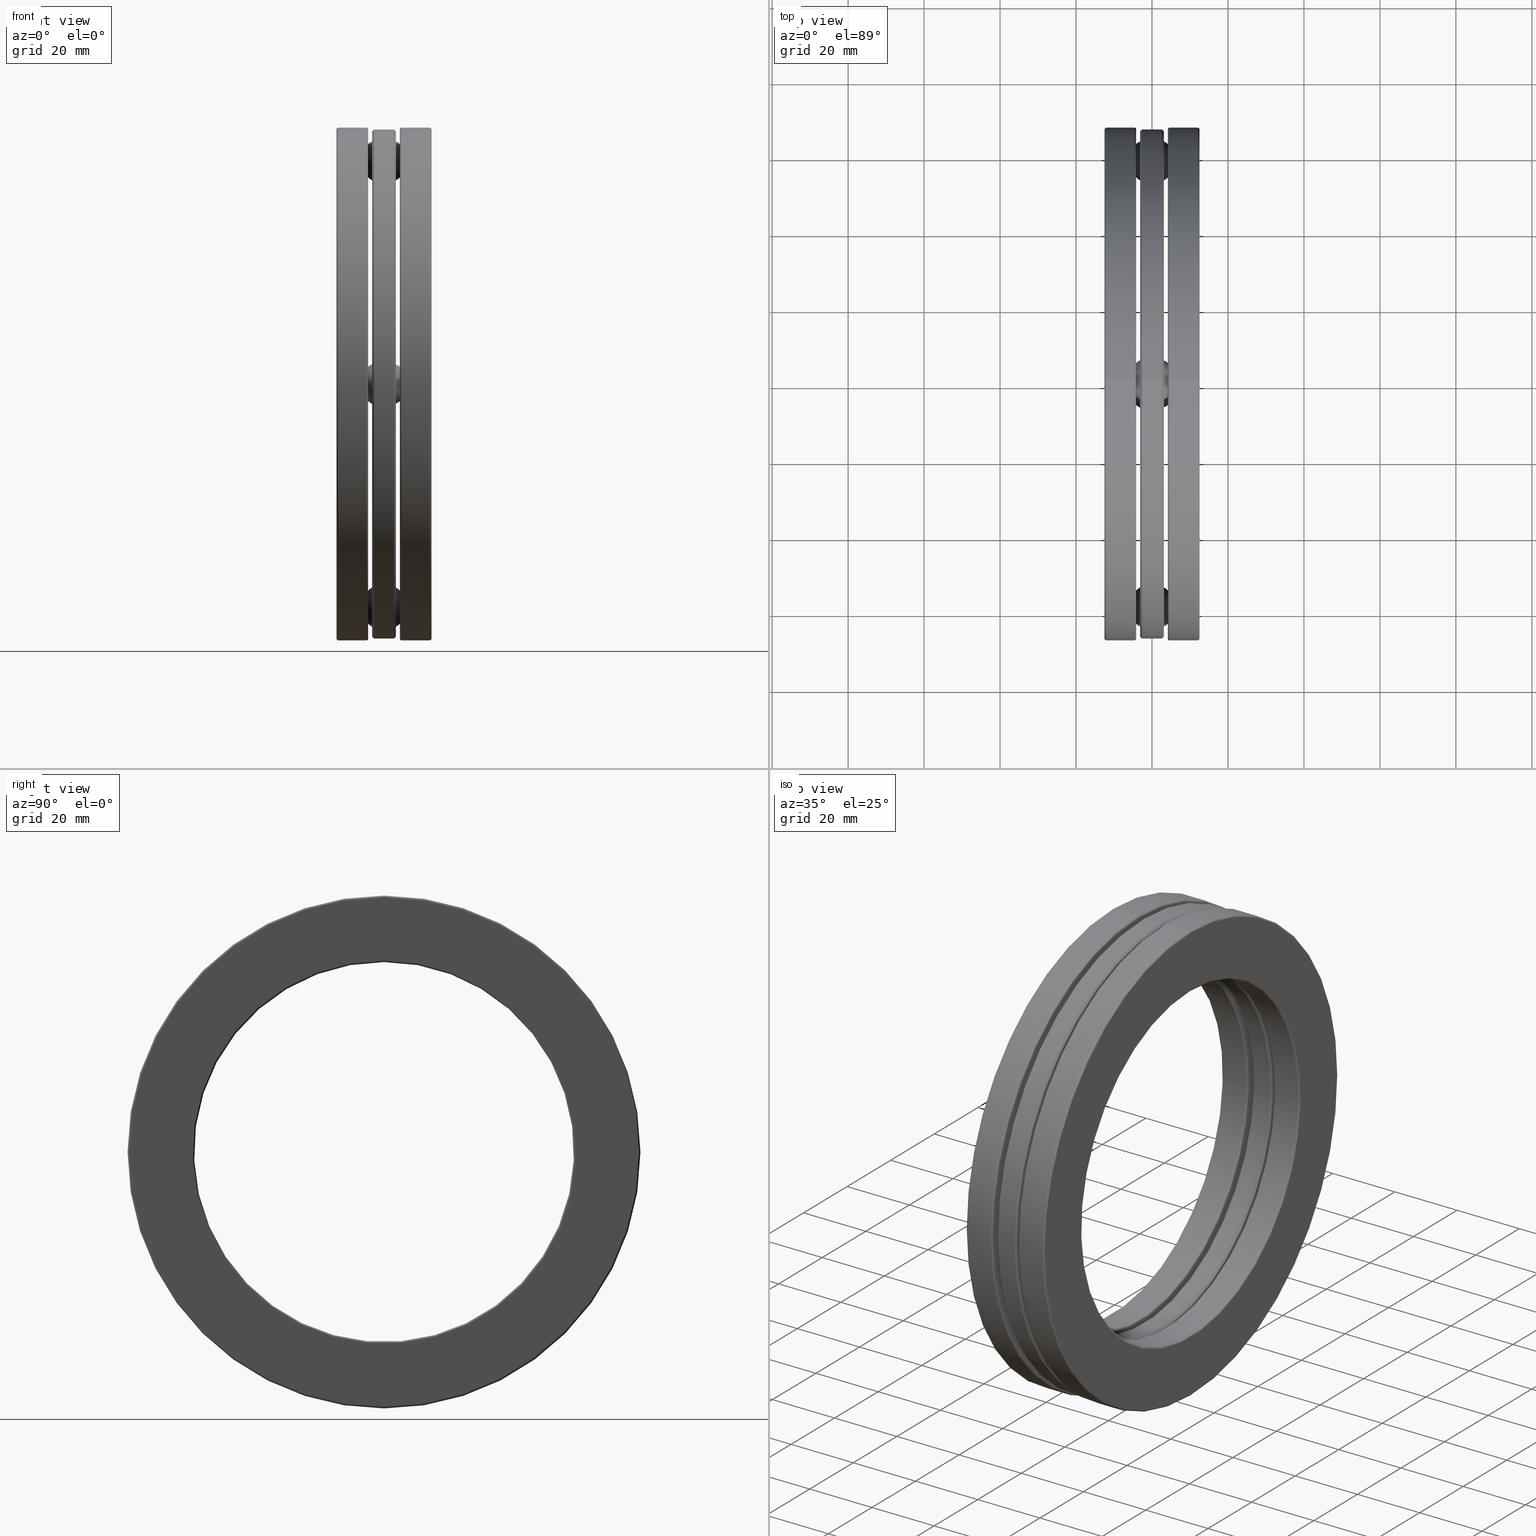
[diagram: canonical four-view strip — front | top / right | iso, engineering-drawing reading convention]
A machine part, canonical four-view strip (front | top / right | iso — engineering-drawing reading convention). The complete STEP part file that produces these views, byte-faithful:
ISO-10303-21;
HEADER;
FILE_DESCRIPTION (( 'STEP AP203' ),
    '1' );
FILE_NAME ('2920-ABB.step',
    '2017-03-07T16:43:13',
    ( '' ),
    ( '' ),
    'SwSTEP 2.0',
    'SolidWorks 2017',
    '' );
FILE_SCHEMA (( 'CONFIG_CONTROL_DESIGN' ));
ENDSEC;

DATA;
#1 = VERTEX_POINT ( 'NONE', #473 ) ;
#2 = ORIENTED_EDGE ( 'NONE', *, *, #636, .T. ) ;
#3 = APPROVAL ( #43, 'UNSPECIFIED' ) ;
#4 = CIRCLE ( 'NONE', #454, 2.637500000000000600 ) ;
#5 = CARTESIAN_POINT ( 'NONE',  ( 0.1640032800000006700, 2.588782924243225700E-017, 0.0000000000000000000 ) ) ;
#6 = CARTESIAN_POINT ( 'NONE',  ( 0.0000000000000000000, 2.422738901023250200E-014, 2.313000000000000200 ) ) ;
#7 = EDGE_CURVE ( 'NONE', #583, #583, #131, .T. ) ;
#8 = CALENDAR_DATE ( 2017, 7, 3 ) ;
#9 = VERTEX_POINT ( 'NONE', #427 ) ;
#10 = EDGE_LOOP ( 'NONE', ( #319 ) ) ;
#11 = TOROIDAL_SURFACE ( 'NONE', #192, 2.637500000000000600, 0.02000000000000016300 ) ;
#12 = EDGE_CURVE ( 'NONE', #457, #457, #61, .T. ) ;
#13 = DIRECTION ( 'NONE',  ( -1.000000000000000000, -0.0000000000000000000, -0.0000000000000000000 ) ) ;
#14 = AXIS2_PLACEMENT_3D ( 'NONE', #605, #402, #336 ) ;
#15 = CARTESIAN_POINT ( 'NONE',  ( 0.0000000000000000000, -8.075796336744167400E-015, -2.313000000000000200 ) ) ;
#16 = DIRECTION ( 'NONE',  ( -1.000000000000000000, 0.0000000000000000000, 0.0000000000000000000 ) ) ;
#17 = DIRECTION ( 'NONE',  ( 1.000000000000000000, 0.0000000000000000000, 0.0000000000000000000 ) ) ;
#18 = PERSON_AND_ORGANIZATION ( #133, #581 ) ;
#19 = ORIENTED_EDGE ( 'NONE', *, *, #709, .T. ) ;
#20 = AXIS2_PLACEMENT_3D ( 'NONE', #752, #444, #769 ) ;
#21 = FACE_OUTER_BOUND ( 'NONE', #704, .T. ) ;
#22 = DIRECTION ( 'NONE',  ( 1.000000000000000000, 0.0000000000000000000, 0.0000000000000000000 ) ) ;
#23 = FACE_OUTER_BOUND ( 'NONE', #10, .T. ) ;
#24 = EDGE_CURVE ( 'NONE', #703, #703, #811, .T. ) ;
#25 = DIRECTION ( 'NONE',  ( 0.0000000000000000000, 0.0000000000000000000, 1.000000000000000000 ) ) ;
#26 = APPROVAL_PERSON_ORGANIZATION ( #195, #3, #624 ) ;
#27 = EDGE_LOOP ( 'NONE', ( #115 ) ) ;
#28 = DIRECTION ( 'NONE',  ( 1.000000000000000000, 0.0000000000000000000, 0.0000000000000000000 ) ) ;
#29 = EDGE_LOOP ( 'NONE', ( #103 ) ) ;
#30 = CYLINDRICAL_SURFACE ( 'NONE', #50, 0.2470000000000005000 ) ;
#31 = EDGE_CURVE ( 'NONE', #58, #58, #394, .T. ) ;
#32 = EDGE_CURVE ( 'NONE', #455, #455, #544, .T. ) ;
#33 = DATE_TIME_ROLE ( 'creation_date' ) ;
#34 = AXIS2_PLACEMENT_3D ( 'NONE', #764, #56, #315 ) ;
#35 = ADVANCED_FACE ( 'NONE', ( #374, #790 ), #534, .T. ) ;
#36 = DIRECTION ( 'NONE',  ( -1.000000000000000000, -0.0000000000000000000, -0.0000000000000000000 ) ) ;
#37 = CARTESIAN_POINT ( 'NONE',  ( 0.1640032800000007200, 0.0000000000000000000, 2.135047972337369900 ) ) ;
#38 = VERTEX_POINT ( 'NONE', #232 ) ;
#39 = CARTESIAN_POINT ( 'NONE',  ( 0.1229999999999999700, 0.0000000000000000000, 0.0000000000000000000 ) ) ;
#40 = EDGE_LOOP ( 'NONE', ( #797 ) ) ;
#41 = FACE_BOUND ( 'NONE', #432, .T. ) ;
#42 = FACE_OUTER_BOUND ( 'NONE', #226, .T. ) ;
#43 = APPROVAL_STATUS ( 'not_yet_approved' ) ;
#44 = CARTESIAN_POINT ( 'NONE',  ( 0.0000000000000000000, 0.0000000000000000000, 0.0000000000000000000 ) ) ;
#45 = DIRECTION ( 'NONE',  ( -1.000000000000000000, -0.0000000000000000000, -0.0000000000000000000 ) ) ;
#46 = DIRECTION ( 'NONE',  ( 1.000000000000000000, 0.0000000000000000000, 0.0000000000000000000 ) ) ;
#47 = AXIS2_PLACEMENT_3D ( 'NONE', #268, #142, #655 ) ;
#48 = CLOSED_SHELL ( 'NONE', ( #62 ) ) ;
#49 = ORIENTED_EDGE ( 'NONE', *, *, #436, .F. ) ;
#50 = AXIS2_PLACEMENT_3D ( 'NONE', #369, #180, #642 ) ;
#51 = DIRECTION ( 'NONE',  ( -1.000000000000000000, -0.0000000000000000000, -0.0000000000000000000 ) ) ;
#52 = CARTESIAN_POINT ( 'NONE',  ( -0.1230000000000000000, 0.0000000000000000000, 2.617500000000000600 ) ) ;
#53 = ADVANCED_FACE ( 'NONE', ( #174, #386 ), #785, .F. ) ;
#54 = EDGE_CURVE ( 'NONE', #539, #539, #114, .T. ) ;
#55 = CARTESIAN_POINT ( 'NONE',  ( -0.1029999999999999900, 0.0000000000000000000, 0.0000000000000000000 ) ) ;
#56 = DIRECTION ( 'NONE',  ( -1.000000000000000000, -0.0000000000000000000, -0.0000000000000000000 ) ) ;
#57 = PERSON_AND_ORGANIZATION ( #133, #581 ) ;
#58 = VERTEX_POINT ( 'NONE', #135 ) ;
#59 = ORIENTED_EDGE ( 'NONE', *, *, #468, .F. ) ;
#60 = CIRCLE ( 'NONE', #72, 0.2470000000000005000 ) ;
#61 = CIRCLE ( 'NONE', #14, 0.2470000000000005000 ) ;
#62 = ADVANCED_FACE ( 'NONE', ( ), #714, .T. ) ;
#63 = AXIS2_PLACEMENT_3D ( 'NONE', #812, #498, #176 ) ;
#64 = DIRECTION ( 'NONE',  ( -1.000000000000000000, -0.0000000000000000000, -0.0000000000000000000 ) ) ;
#65 = ORIENTED_EDGE ( 'NONE', *, *, #149, .F. ) ;
#66 = ORIENTED_EDGE ( 'NONE', *, *, #69, .F. ) ;
#67 = EDGE_LOOP ( 'NONE', ( #68 ) ) ;
#68 = ORIENTED_EDGE ( 'NONE', *, *, #140, .F. ) ;
#69 = EDGE_CURVE ( 'NONE', #597, #597, #259, .T. ) ;
#70 = CC_DESIGN_APPROVAL ( #3, ( #716 ) ) ;
#71 = LOCAL_TIME ( 11, 43, 13.00000000000000000, #450 ) ;
#72 = AXIS2_PLACEMENT_3D ( 'NONE', #295, #173, #550 ) ;
#73 = VERTEX_POINT ( 'NONE', #673 ) ;
#74 = EDGE_LOOP ( 'NONE', ( #543 ) ) ;
#75 = FACE_OUTER_BOUND ( 'NONE', #712, .T. ) ;
#76 = EDGE_LOOP ( 'NONE', ( #392 ) ) ;
#77 = CIRCLE ( 'NONE', #34, 1.968500000000000100 ) ;
#78 = FACE_OUTER_BOUND ( 'NONE', #179, .T. ) ;
#79 = FACE_BOUND ( 'NONE', #74, .T. ) ;
#80 = DIRECTION ( 'NONE',  ( -1.000000000000000000, -0.0000000000000000000, -0.0000000000000000000 ) ) ;
#81 = DIRECTION ( 'NONE',  ( 0.0000000000000000000, 0.0000000000000000000, -1.000000000000000000 ) ) ;
#82 = DIRECTION ( 'NONE',  ( 0.0000000000000000000, 0.0000000000000000000, -1.000000000000000000 ) ) ;
#83 = SECURITY_CLASSIFICATION ( '', '', #291 ) ;
#84 = ADVANCED_FACE ( 'NONE', ( #193, #287, #126, #660, #782, #253 ), #602, .F. ) ;
#85 = ORIENTED_EDGE ( 'NONE', *, *, #7, .F. ) ;
#86 = CYLINDRICAL_SURFACE ( 'NONE', #352, 1.988500000000000400 ) ;
#87 = ORIENTED_EDGE ( 'NONE', *, *, #391, .T. ) ;
#88 = FACE_OUTER_BOUND ( 'NONE', #40, .T. ) ;
#89 = CARTESIAN_POINT ( 'NONE',  ( -0.1229999999999999600, 0.2470000000000247000, 2.312999999999997500 ) ) ;
#90 = EDGE_LOOP ( 'NONE', ( #635 ) ) ;
#91 = DIRECTION ( 'NONE',  ( 0.0000000000000000000, 0.0000000000000000000, 1.000000000000000000 ) ) ;
#92 = PERSON_AND_ORGANIZATION_ROLE ( 'design_owner' ) ;
#93 = AXIS2_PLACEMENT_3D ( 'NONE', #729, #409, #476 ) ;
#94 = ADVANCED_FACE ( 'NONE', ( #79, #434 ), #463, .T. ) ;
#95 = CARTESIAN_POINT ( 'NONE',  ( -0.1229999999999999600, -0.2470000000000085500, -2.312999999999999300 ) ) ;
#96 = CARTESIAN_POINT ( 'NONE',  ( 0.1840032800000007700, 0.0000000000000000000, 0.0000000000000000000 ) ) ;
#97 = COORDINATED_UNIVERSAL_TIME_OFFSET ( 5, 0, .BEHIND. ) ;
#98 = EDGE_CURVE ( 'NONE', #224, #224, #323, .T. ) ;
#99 = ADVANCED_FACE ( 'NONE', ( #745, #88 ), #565, .T. ) ;
#100 = CARTESIAN_POINT ( 'NONE',  ( 0.0000000000000000000, 0.0000000000000000000, 0.0000000000000000000 ) ) ;
#101 = EDGE_LOOP ( 'NONE', ( #400 ) ) ;
#102 = CONICAL_SURFACE ( 'NONE', #278, 2.637500000000000600, 0.7853981633974437300 ) ;
#103 = ORIENTED_EDGE ( 'NONE', *, *, #69, .T. ) ;
#104 = CARTESIAN_POINT ( 'NONE',  ( 0.1840032800000006300, 0.0000000000000000000, 0.0000000000000000000 ) ) ;
#105 = PERSON_AND_ORGANIZATION_ROLE ( 'design_supplier' ) ;
#106 = CARTESIAN_POINT ( 'NONE',  ( -0.1640032799999999200, 0.0000000000000000000, 2.637500000000000600 ) ) ;
#107 = AXIS2_PLACEMENT_3D ( 'NONE', #55, #187, #694 ) ;
#108 = TOROIDAL_SURFACE ( 'NONE', #438, 2.637500000000000600, 0.01999999999999975400 ) ;
#109 = EDGE_LOOP ( 'NONE', ( #307 ) ) ;
#110 = CARTESIAN_POINT ( 'NONE',  ( -0.1640032799999997800, -4.314638207071997200E-017, 0.0000000000000000000 ) ) ;
#111 = FACE_OUTER_BOUND ( 'NONE', #753, .T. ) ;
#112 = EDGE_LOOP ( 'NONE', ( #461 ) ) ;
#113 = DIRECTION ( 'NONE',  ( -1.000000000000000000, -0.0000000000000000000, -0.0000000000000000000 ) ) ;
#114 = CIRCLE ( 'NONE', #398, 2.657500000000000600 ) ;
#115 = ORIENTED_EDGE ( 'NONE', *, *, #186, .F. ) ;
#116 = DIRECTION ( 'NONE',  ( 0.0000000000000000000, 0.0000000000000000000, 1.000000000000000000 ) ) ;
#117 = EDGE_CURVE ( 'NONE', #687, #687, #367, .T. ) ;
#118 = DIRECTION ( 'NONE',  ( 0.0000000000000000000, 0.0000000000000000000, -1.000000000000000000 ) ) ;
#119 = COORDINATED_UNIVERSAL_TIME_OFFSET ( 5, 0, .BEHIND. ) ;
#120 = VERTEX_POINT ( 'NONE', #478 ) ;
#121 = ORIENTED_EDGE ( 'NONE', *, *, #805, .T. ) ;
#122 = CLOSED_SHELL ( 'NONE', ( #447, #94, #589, #773, #220, #614, #820, #185, #548, #99 ) ) ;
#123 = CARTESIAN_POINT ( 'NONE',  ( -0.1230000000000000000, 0.0000000000000000000, 0.0000000000000000000 ) ) ;
#124 = FACE_OUTER_BOUND ( 'NONE', #347, .T. ) ;
#125 = AXIS2_PLACEMENT_3D ( 'NONE', #822, #516, #252 ) ;
#126 = FACE_BOUND ( 'NONE', #283, .T. ) ;
#127 = CARTESIAN_POINT ( 'NONE',  ( -0.1029999999999999700, 0.0000000000000000000, 1.988500000000000400 ) ) ;
#128 = CC_DESIGN_PERSON_AND_ORGANIZATION_ASSIGNMENT ( #276, #681, ( #716 ) ) ;
#129 = FACE_OUTER_BOUND ( 'NONE', #152, .T. ) ;
#130 = EDGE_LOOP ( 'NONE', ( #421 ) ) ;
#131 = CIRCLE ( 'NONE', #47, 1.968500000000000100 ) ;
#132 = CARTESIAN_POINT ( 'NONE',  ( -0.4720000000000001400, 0.0000000000000000000, 0.0000000000000000000 ) ) ;
#133 = PERSON ( 'UNSPECIFIED', 'UNSPECIFIED', 'UNSPECIFIED', ('UNSPECIFIED'), ('UNSPECIFIED'), ('UNSPECIFIED') ) ;
#134 = AXIS2_PLACEMENT_3D ( 'NONE', #490, #292, #366 ) ;
#135 = CARTESIAN_POINT ( 'NONE',  ( -0.1229999999999999600, 0.0000000000000000000, 2.008500000000000600 ) ) ;
#136 = ORIENTED_EDGE ( 'NONE', *, *, #547, .F. ) ;
#137 = FACE_OUTER_BOUND ( 'NONE', #109, .T. ) ;
#138 = ORIENTED_EDGE ( 'NONE', *, *, #672, .T. ) ;
#139 = FACE_OUTER_BOUND ( 'NONE', #431, .T. ) ;
#140 = EDGE_CURVE ( 'NONE', #726, #726, #403, .T. ) ;
#141 = CARTESIAN_POINT ( 'NONE',  ( -0.1640032799999997800, -4.314638207071997200E-017, 0.0000000000000000000 ) ) ;
#142 = DIRECTION ( 'NONE',  ( -1.000000000000000000, -0.0000000000000000000, -0.0000000000000000000 ) ) ;
#143 = EDGE_LOOP ( 'NONE', ( #136 ) ) ;
#144 = ADVANCED_FACE ( 'NONE', ( #588, #286 ), #102, .T. ) ;
#145 = CIRCLE ( 'NONE', #654, 2.490952027662630900 ) ;
#146 = CARTESIAN_POINT ( 'NONE',  ( -0.1229999999999999600, -6.896906880556317300E-018, 0.0000000000000000000 ) ) ;
#147 = DIRECTION ( 'NONE',  ( 0.0000000000000000000, 1.000000000000000000, -1.106011333467310900E-014 ) ) ;
#148 = DIRECTION ( 'NONE',  ( 0.0000000000000000000, 1.000000000000000000, -3.491481338843133400E-015 ) ) ;
#149 = EDGE_CURVE ( 'NONE', #1, #1, #145, .T. ) ;
#150 = PERSON_AND_ORGANIZATION_ROLE ( 'creator' ) ;
#151 = LOCAL_TIME ( 11, 43, 13.00000000000000000, #203 ) ;
#152 = EDGE_LOOP ( 'NONE', ( #339 ) ) ;
#153 = CARTESIAN_POINT ( 'NONE',  ( 0.1840032800000006600, 0.0000000000000000000, 0.0000000000000000000 ) ) ;
#154 = EDGE_CURVE ( 'NONE', #329, #329, #471, .T. ) ;
#155 = CYLINDRICAL_SURFACE ( 'NONE', #320, 2.657500000000000200 ) ;
#156 = ORIENTED_EDGE ( 'NONE', *, *, #12, .T. ) ;
#157 =( CONVERSION_BASED_UNIT ( 'INCH', #380 ) LENGTH_UNIT ( ) NAMED_UNIT ( #251 ) );
#158 = EDGE_LOOP ( 'NONE', ( #330 ) ) ;
#159 = DIRECTION ( 'NONE',  ( -1.000000000000000000, -0.0000000000000000000, -0.0000000000000000000 ) ) ;
#160 = ADVANCED_FACE ( 'NONE', ( #23, #529 ), #30, .F. ) ;
#161 = CARTESIAN_POINT ( 'NONE',  ( 0.1230000000000000300, 0.0000000000000000000, 2.008500000000000600 ) ) ;
#162 = AXIS2_PLACEMENT_3D ( 'NONE', #5, #313, #118 ) ;
#163 = CARTESIAN_POINT ( 'NONE',  ( 0.0000000000000000000, 0.0000000000000000000, 0.0000000000000000000 ) ) ;
#164 = ADVANCED_FACE ( 'NONE', ( #766, #250 ), #517, .F. ) ;
#165 = DATE_TIME_ROLE ( 'classification_date' ) ;
#166 = DIRECTION ( 'NONE',  ( 0.0000000000000000000, 0.0000000000000000000, 1.000000000000000000 ) ) ;
#167 = VERTEX_POINT ( 'NONE', #732 ) ;
#168 = CONICAL_SURFACE ( 'NONE', #397, 2.008500000000000600, 0.7853981633974500600 ) ;
#169 = ORIENTED_EDGE ( 'NONE', *, *, #685, .F. ) ;
#170 = AXIS2_PLACEMENT_3D ( 'NONE', #626, #756, #680 ) ;
#171 = FACE_OUTER_BOUND ( 'NONE', #256, .T. ) ;
#172 = FACE_OUTER_BOUND ( 'NONE', #767, .T. ) ;
#173 = DIRECTION ( 'NONE',  ( 1.000000000000000000, 0.0000000000000000000, 0.0000000000000000000 ) ) ;
#174 = FACE_BOUND ( 'NONE', #488, .T. ) ;
#175 = DIRECTION ( 'NONE',  ( 0.0000000000000000000, 0.0000000000000000000, -1.000000000000000000 ) ) ;
#176 = DIRECTION ( 'NONE',  ( 0.0000000000000000000, 0.0000000000000000000, -1.000000000000000000 ) ) ;
#177 = DIRECTION ( 'NONE',  ( 1.000000000000000000, 0.0000000000000000000, 0.0000000000000000000 ) ) ;
#178 = PERSON_AND_ORGANIZATION ( #133, #581 ) ;
#179 = EDGE_LOOP ( 'NONE', ( #65 ) ) ;
#180 = DIRECTION ( 'NONE',  ( 1.000000000000000000, 0.0000000000000000000, 0.0000000000000000000 ) ) ;
#181 = FACE_BOUND ( 'NONE', #205, .T. ) ;
#182 = ORIENTED_EDGE ( 'NONE', *, *, #343, .T. ) ;
#183 = AXIS2_PLACEMENT_3D ( 'NONE', #441, #701, #247 ) ;
#184 = CONICAL_SURFACE ( 'NONE', #379, 2.008500000000000600, 0.7853981633974500600 ) ;
#185 = ADVANCED_FACE ( 'NONE', ( #350, #42 ), #228, .F. ) ;
#186 = EDGE_CURVE ( 'NONE', #265, #265, #561, .T. ) ;
#187 = DIRECTION ( 'NONE',  ( -1.000000000000000000, -0.0000000000000000000, -0.0000000000000000000 ) ) ;
#188 = VERTEX_POINT ( 'NONE', #549 ) ;
#189 = ORIENTED_EDGE ( 'NONE', *, *, #468, .T. ) ;
#190 = CIRCLE ( 'NONE', #792, 0.2470000000000005000 ) ;
#191 = CIRCLE ( 'NONE', #821, 1.988500000000000400 ) ;
#192 = AXIS2_PLACEMENT_3D ( 'NONE', #153, #625, #801 ) ;
#193 = FACE_BOUND ( 'NONE', #570, .T. ) ;
#194 = DIRECTION ( 'NONE',  ( -1.000000000000000000, -0.0000000000000000000, -0.0000000000000000000 ) ) ;
#195 = PERSON_AND_ORGANIZATION ( #133, #581 ) ;
#196 = ORIENTED_EDGE ( 'NONE', *, *, #636, .F. ) ;
#197 = ORIENTED_EDGE ( 'NONE', *, *, #154, .F. ) ;
#198 = FACE_OUTER_BOUND ( 'NONE', #628, .T. ) ;
#199 = ORIENTED_EDGE ( 'NONE', *, *, #566, .F. ) ;
#200 = DIRECTION ( 'NONE',  ( -1.000000000000000000, 0.0000000000000000000, 0.0000000000000000000 ) ) ;
#201 = AXIS2_PLACEMENT_3D ( 'NONE', #806, #45, #567 ) ;
#202 = DIRECTION ( 'NONE',  ( 0.0000000000000000000, 0.0000000000000000000, 1.000000000000000000 ) ) ;
#203 = COORDINATED_UNIVERSAL_TIME_OFFSET ( 5, 0, .BEHIND. ) ;
#204 = FACE_BOUND ( 'NONE', #67, .T. ) ;
#205 = EDGE_LOOP ( 'NONE', ( #197 ) ) ;
#206 = EDGE_LOOP ( 'NONE', ( #189 ) ) ;
#207 = ADVANCED_FACE ( 'NONE', ( #809, #124 ), #789, .F. ) ;
#208 = CARTESIAN_POINT ( 'NONE',  ( 0.0000000000000000000, 0.0000000000000000000, 0.0000000000000000000 ) ) ;
#209 = CARTESIAN_POINT ( 'NONE',  ( -0.1229999999999999600, 2.422738901023250200E-014, 2.313000000000000200 ) ) ;
#210 = DIRECTION ( 'NONE',  ( 1.000000000000000000, 0.0000000000000000000, 0.0000000000000000000 ) ) ;
#211 = EDGE_CURVE ( 'NONE', #493, #493, #191, .T. ) ;
#212 = VERTEX_POINT ( 'NONE', #413 ) ;
#213 = ORIENTED_EDGE ( 'NONE', *, *, #117, .T. ) ;
#214 = CC_DESIGN_SECURITY_CLASSIFICATION ( #83, ( #716 ) ) ;
#215 = ORIENTED_EDGE ( 'NONE', *, *, #7, .T. ) ;
#216 = DIRECTION ( 'NONE',  ( -1.000000000000000000, -0.0000000000000000000, -0.0000000000000000000 ) ) ;
#217 = EDGE_LOOP ( 'NONE', ( #59 ) ) ;
#218 = APPROVAL_ROLE ( '' ) ;
#219 = AXIS2_PLACEMENT_3D ( 'NONE', #15, #148, #272 ) ;
#220 = ADVANCED_FACE ( 'NONE', ( #172, #460 ), #298, .T. ) ;
#221 = CARTESIAN_POINT ( 'NONE',  ( -0.4920000000000001000, 0.0000000000000000000, 2.637500000000000600 ) ) ;
#222 = DIRECTION ( 'NONE',  ( 0.0000000000000000000, 0.0000000000000000000, -1.000000000000000000 ) ) ;
#223 = EDGE_CURVE ( 'NONE', #212, #212, #819, .T. ) ;
#224 = VERTEX_POINT ( 'NONE', #536 ) ;
#225 = DIRECTION ( 'NONE',  ( 0.0000000000000000000, 0.0000000000000000000, 1.000000000000000000 ) ) ;
#226 = EDGE_LOOP ( 'NONE', ( #85 ) ) ;
#227 = CARTESIAN_POINT ( 'NONE',  ( -0.1229999999999999600, 0.0000000000000000000, 0.0000000000000000000 ) ) ;
#228 = CYLINDRICAL_SURFACE ( 'NONE', #408, 1.968500000000000100 ) ;
#229 = DIRECTION ( 'NONE',  ( 0.0000000000000000000, 0.0000000000000000000, -1.000000000000000000 ) ) ;
#230 = DIRECTION ( 'NONE',  ( -1.000000000000000000, -0.0000000000000000000, -0.0000000000000000000 ) ) ;
#231 = DIRECTION ( 'NONE',  ( -1.000000000000000000, -0.0000000000000000000, -0.0000000000000000000 ) ) ;
#232 = CARTESIAN_POINT ( 'NONE',  ( 0.4720000000000009200, 0.0000000000000000000, 1.968500000000000100 ) ) ;
#233 = AXIS2_PLACEMENT_3D ( 'NONE', #428, #231, #676 ) ;
#234 = CARTESIAN_POINT ( 'NONE',  ( -0.1840032799999997100, 0.0000000000000000000, 0.0000000000000000000 ) ) ;
#235 = DATE_AND_TIME ( #467, #71 ) ;
#236 = EDGE_LOOP ( 'NONE', ( #763 ) ) ;
#237 = EDGE_LOOP ( 'NONE', ( #631 ) ) ;
#238 = ADVANCED_FACE ( 'NONE', ( ), #601, .T. ) ;
#239 = UNCERTAINTY_MEASURE_WITH_UNIT (LENGTH_MEASURE( 1.000000000000000100E-005 ), #157, 'distance_accuracy_value', 'NONE');
#240 = EDGE_LOOP ( 'NONE', ( #573 ) ) ;
#241 = CARTESIAN_POINT ( 'NONE',  ( -0.1640032799999998900, 0.0000000000000000000, 0.0000000000000000000 ) ) ;
#242 = DIRECTION ( 'NONE',  ( -1.000000000000000000, -0.0000000000000000000, -0.0000000000000000000 ) ) ;
#243 = ADVANCED_FACE ( 'NONE', ( ), #523, .T. ) ;
#244 = DIRECTION ( 'NONE',  ( 0.0000000000000000000, 0.0000000000000000000, 1.000000000000000000 ) ) ;
#245 = DIRECTION ( 'NONE',  ( -1.000000000000000000, -0.0000000000000000000, -0.0000000000000000000 ) ) ;
#246 = VERTEX_POINT ( 'NONE', #748 ) ;
#247 = DIRECTION ( 'NONE',  ( 0.0000000000000000000, 0.0000000000000000000, 1.000000000000000000 ) ) ;
#248 = EDGE_LOOP ( 'NONE', ( #215 ) ) ;
#249 = DIRECTION ( 'NONE',  ( -1.000000000000000000, -0.0000000000000000000, -0.0000000000000000000 ) ) ;
#250 = FACE_OUTER_BOUND ( 'NONE', #575, .T. ) ;
#251 = DIMENSIONAL_EXPONENTS ( 1.000000000000000000, 0.0000000000000000000, 0.0000000000000000000, 0.0000000000000000000, 0.0000000000000000000, 0.0000000000000000000, 0.0000000000000000000 ) ;
#252 = DIRECTION ( 'NONE',  ( 0.0000000000000000000, 0.0000000000000000000, 1.000000000000000000 ) ) ;
#253 = FACE_OUTER_BOUND ( 'NONE', #420, .T. ) ;
#254 = CARTESIAN_POINT ( 'NONE',  ( 0.0000000000000000000, 0.0000000000000000000, 0.0000000000000000000 ) ) ;
#255 = DIRECTION ( 'NONE',  ( 0.0000000000000000000, -1.000000000000000000, 3.318034000401932600E-015 ) ) ;
#256 = EDGE_LOOP ( 'NONE', ( #558 ) ) ;
#257 = FACE_OUTER_BOUND ( 'NONE', #504, .T. ) ;
#258 = EDGE_LOOP ( 'NONE', ( #679 ) ) ;
#259 = CIRCLE ( 'NONE', #439, 2.637500000000000600 ) ;
#260 = DIRECTION ( 'NONE',  ( 0.0000000000000000000, 0.0000000000000000000, 1.000000000000000000 ) ) ;
#261 = EDGE_CURVE ( 'NONE', #519, #519, #705, .T. ) ;
#262 = CARTESIAN_POINT ( 'NONE',  ( 0.1230000000000000100, 0.2470000000000247000, 2.312999999999997500 ) ) ;
#263 = AXIS2_PLACEMENT_3D ( 'NONE', #209, #658, #147 ) ;
#264 = APPROVAL_DATE_TIME ( #440, #404 ) ;
#265 = VERTEX_POINT ( 'NONE', #52 ) ;
#266 = CLOSED_SHELL ( 'NONE', ( #238 ) ) ;
#267 = FACE_BOUND ( 'NONE', #101, .T. ) ;
#268 = CARTESIAN_POINT ( 'NONE',  ( -0.1840032799999997400, 0.0000000000000000000, 0.0000000000000000000 ) ) ;
#269 = CC_DESIGN_APPROVAL ( #706, ( #376 ) ) ;
#270 = DIRECTION ( 'NONE',  ( -1.000000000000000000, -0.0000000000000000000, -0.0000000000000000000 ) ) ;
#271 = AXIS2_PLACEMENT_3D ( 'NONE', #449, #772, #316 ) ;
#272 = DIRECTION ( 'NONE',  ( -1.000000000000000000, 0.0000000000000000000, 0.0000000000000000000 ) ) ;
#273 = DESIGN_CONTEXT ( 'detailed design', #623, 'design' ) ;
#274 = DIRECTION ( 'NONE',  ( 0.0000000000000000000, 0.0000000000000000000, -1.000000000000000000 ) ) ;
#275 = CARTESIAN_POINT ( 'NONE',  ( 0.1640032800000007200, 0.0000000000000000000, 0.0000000000000000000 ) ) ;
#276 = PERSON_AND_ORGANIZATION ( #133, #581 ) ;
#277 = ORIENTED_EDGE ( 'NONE', *, *, #261, .F. ) ;
#278 = AXIS2_PLACEMENT_3D ( 'NONE', #426, #230, #297 ) ;
#279 = ORIENTED_EDGE ( 'NONE', *, *, #24, .T. ) ;
#280 = DIRECTION ( 'NONE',  ( 1.000000000000000000, 0.0000000000000000000, 0.0000000000000000000 ) ) ;
#281 = CARTESIAN_POINT ( 'NONE',  ( 0.1230000000000000100, -2.313000000000000200, 0.2470000000000005000 ) ) ;
#282 = VERTEX_POINT ( 'NONE', #411 ) ;
#283 = EDGE_LOOP ( 'NONE', ( #277 ) ) ;
#284 = CARTESIAN_POINT ( 'NONE',  ( 0.1840032800000007700, 0.0000000000000000000, 1.968500000000000100 ) ) ;
#285 = EDGE_LOOP ( 'NONE', ( #382 ) ) ;
#286 = FACE_OUTER_BOUND ( 'NONE', #373, .T. ) ;
#287 = FACE_BOUND ( 'NONE', #112, .T. ) ;
#288 = DIRECTION ( 'NONE',  ( -0.0000000000000000000, 0.0000000000000000000, -1.000000000000000000 ) ) ;
#289 = APPLICATION_CONTEXT ( 'configuration controlled 3d designs of mechanical parts and assemblies' ) ;
#290 = AXIS2_PLACEMENT_3D ( 'NONE', #751, #684, #574 ) ;
#291 = SECURITY_CLASSIFICATION_LEVEL ( 'unclassified' ) ;
#292 = DIRECTION ( 'NONE',  ( -1.000000000000000000, -0.0000000000000000000, -0.0000000000000000000 ) ) ;
#293 = DIRECTION ( 'NONE',  ( -1.000000000000000000, -0.0000000000000000000, -0.0000000000000000000 ) ) ;
#294 = AXIS2_PLACEMENT_3D ( 'NONE', #208, #535, #202 ) ;
#295 = CARTESIAN_POINT ( 'NONE',  ( 0.1230000000000000100, -2.313000000000000200, 0.0000000000000000000 ) ) ;
#296 = TOROIDAL_SURFACE ( 'NONE', #301, 1.988500000000000200, 0.01999999999999968500 ) ;
#297 = DIRECTION ( 'NONE',  ( 0.0000000000000000000, 0.0000000000000000000, 1.000000000000000000 ) ) ;
#298 = TOROIDAL_SURFACE ( 'NONE', #538, 2.637500000000000600, 0.01999999999999988900 ) ;
#299 = EDGE_CURVE ( 'NONE', #389, #389, #620, .T. ) ;
#300 = MANIFOLD_SOLID_BREP ( 'CirPattern4[3]', #266 ) ;
#301 = AXIS2_PLACEMENT_3D ( 'NONE', #375, #249, #768 ) ;
#302 = CARTESIAN_POINT ( 'NONE',  ( -0.1640032799999997500, 0.0000000000000000000, 0.0000000000000000000 ) ) ;
#303 = PERSON_AND_ORGANIZATION ( #133, #581 ) ;
#304 = AXIS2_PLACEMENT_3D ( 'NONE', #663, #216, #91 ) ;
#305 = CARTESIAN_POINT ( 'NONE',  ( 0.0000000000000000000, 0.0000000000000000000, 0.0000000000000000000 ) ) ;
#306 = APPROVAL_DATE_TIME ( #649, #706 ) ;
#307 = ORIENTED_EDGE ( 'NONE', *, *, #343, .F. ) ;
#308 = CIRCLE ( 'NONE', #485, 0.2470000000000005000 ) ;
#309 = ORIENTED_EDGE ( 'NONE', *, *, #223, .F. ) ;
#310 = FACE_OUTER_BOUND ( 'NONE', #237, .T. ) ;
#311 = CARTESIAN_POINT ( 'NONE',  ( 0.1030000000000000400, 0.0000000000000000000, 0.0000000000000000000 ) ) ;
#312 = EDGE_CURVE ( 'NONE', #318, #318, #4, .T. ) ;
#313 = DIRECTION ( 'NONE',  ( 1.000000000000000000, 0.0000000000000000000, 0.0000000000000000000 ) ) ;
#314 = AXIS2_PLACEMENT_3D ( 'NONE', #104, #36, #746 ) ;
#315 = DIRECTION ( 'NONE',  ( 0.0000000000000000000, 0.0000000000000000000, 1.000000000000000000 ) ) ;
#316 = DIRECTION ( 'NONE',  ( 0.0000000000000000000, 0.0000000000000000000, 1.000000000000000000 ) ) ;
#317 = DIRECTION ( 'NONE',  ( -1.000000000000000000, -0.0000000000000000000, -0.0000000000000000000 ) ) ;
#318 = VERTEX_POINT ( 'NONE', #221 ) ;
#319 = ORIENTED_EDGE ( 'NONE', *, *, #662, .T. ) ;
#320 = AXIS2_PLACEMENT_3D ( 'NONE', #305, #51, #503 ) ;
#321 = ADVANCED_BREP_SHAPE_REPRESENTATION ( '2920-ABB', ( #396, #740, #466, #446, #515, #300, #342, #513 ), #477 ) ;
#322 = FACE_OUTER_BOUND ( 'NONE', #345, .T. ) ;
#323 = CIRCLE ( 'NONE', #170, 2.135047972337369400 ) ;
#324 = CARTESIAN_POINT ( 'NONE',  ( -0.1840032799999997400, 0.0000000000000000000, 1.968500000000000100 ) ) ;
#325 = PRODUCT ( '2920-ABB', '2920-ABB', '', ( #357 ) ) ;
#326 = AXIS2_PLACEMENT_3D ( 'NONE', #39, #491, #564 ) ;
#327 = CARTESIAN_POINT ( 'NONE',  ( 0.4919999999999999900, 0.0000000000000000000, 2.637500000000000600 ) ) ;
#328 = PERSON_AND_ORGANIZATION ( #133, #581 ) ;
#329 = VERTEX_POINT ( 'NONE', #671 ) ;
#330 = ORIENTED_EDGE ( 'NONE', *, *, #12, .F. ) ;
#331 = SPHERICAL_SURFACE ( 'NONE', #290, 0.2420000000000001900 ) ;
#332 = ORIENTED_EDGE ( 'NONE', *, *, #499, .F. ) ;
#333 = FACE_OUTER_BOUND ( 'NONE', #130, .T. ) ;
#334 = ORIENTED_EDGE ( 'NONE', *, *, #586, .T. ) ;
#335 = AXIS2_PLACEMENT_3D ( 'NONE', #500, #293, #568 ) ;
#336 = DIRECTION ( 'NONE',  ( 0.0000000000000000000, 1.000000000000000000, -9.954102001205798600E-015 ) ) ;
#337 = VERTEX_POINT ( 'NONE', #552 ) ;
#338 = CIRCLE ( 'NONE', #107, 2.637500000000000600 ) ;
#339 = ORIENTED_EDGE ( 'NONE', *, *, #154, .T. ) ;
#340 = FACE_BOUND ( 'NONE', #371, .T. ) ;
#341 = CARTESIAN_POINT ( 'NONE',  ( 0.4720000000000008100, 0.0000000000000000000, 0.0000000000000000000 ) ) ;
#342 = MANIFOLD_SOLID_BREP ( 'CirPattern7', #669 ) ;
#343 = EDGE_CURVE ( 'NONE', #569, #569, #401, .T. ) ;
#344 = DATE_AND_TIME ( #502, #686 ) ;
#345 = EDGE_LOOP ( 'NONE', ( #199 ) ) ;
#346 = VERTEX_POINT ( 'NONE', #161 ) ;
#347 = EDGE_LOOP ( 'NONE', ( #657 ) ) ;
#348 = CARTESIAN_POINT ( 'NONE',  ( 0.1230000000000000100, 1.034536032083450600E-017, 0.0000000000000000000 ) ) ;
#349 = DIRECTION ( 'NONE',  ( 1.000000000000000000, 0.0000000000000000000, 0.0000000000000000000 ) ) ;
#350 = FACE_OUTER_BOUND ( 'NONE', #787, .T. ) ;
#351 = APPLICATION_PROTOCOL_DEFINITION ( 'international standard', 'config_control_design', 1994, #623 ) ;
#352 = AXIS2_PLACEMENT_3D ( 'NONE', #475, #479, #733 ) ;
#353 = DIRECTION ( 'NONE',  ( -1.000000000000000000, -0.0000000000000000000, -0.0000000000000000000 ) ) ;
#354 =( NAMED_UNIT ( * ) SI_UNIT ( $, .STERADIAN. ) SOLID_ANGLE_UNIT ( ) );
#355 = ADVANCED_FACE ( 'NONE', ( #798, #422 ), #184, .F. ) ;
#356 = DIRECTION ( 'NONE',  ( 1.000000000000000000, 0.0000000000000000000, 0.0000000000000000000 ) ) ;
#357 = MECHANICAL_CONTEXT ( 'NONE', #289, 'mechanical' ) ;
#358 = DIRECTION ( 'NONE',  ( 1.000000000000000000, 0.0000000000000000000, 0.0000000000000000000 ) ) ;
#359 = DIRECTION ( 'NONE',  ( 1.000000000000000000, 0.0000000000000000000, 0.0000000000000000000 ) ) ;
#360 = CALENDAR_DATE ( 2017, 7, 3 ) ;
#361 = DIRECTION ( 'NONE',  ( 0.0000000000000000000, -1.000000000000000000, 3.318034000401932600E-015 ) ) ;
#362 = ORIENTED_EDGE ( 'NONE', *, *, #31, .F. ) ;
#363 = AXIS2_PLACEMENT_3D ( 'NONE', #141, #356, #81 ) ;
#364 = TOROIDAL_SURFACE ( 'NONE', #770, 1.988500000000000200, 0.02000000000000002500 ) ;
#365 = CIRCLE ( 'NONE', #134, 2.637500000000000600 ) ;
#366 = DIRECTION ( 'NONE',  ( 0.0000000000000000000, 0.0000000000000000000, 1.000000000000000000 ) ) ;
#367 = CIRCLE ( 'NONE', #335, 0.2470000000000005000 ) ;
#368 = AXIS2_PLACEMENT_3D ( 'NONE', #749, #743, #225 ) ;
#369 = CARTESIAN_POINT ( 'NONE',  ( -0.4920393700787402100, -8.075796336744167400E-015, -2.313000000000000200 ) ) ;
#370 = AXIS2_PLACEMENT_3D ( 'NONE', #678, #349, #229 ) ;
#371 = EDGE_LOOP ( 'NONE', ( #739 ) ) ;
#372 = TOROIDAL_SURFACE ( 'NONE', #721, 2.637500000000000600, 0.01999999999999988900 ) ;
#373 = EDGE_LOOP ( 'NONE', ( #526 ) ) ;
#374 = FACE_OUTER_BOUND ( 'NONE', #546, .T. ) ;
#375 = CARTESIAN_POINT ( 'NONE',  ( 0.4720000000000009200, 0.0000000000000000000, 0.0000000000000000000 ) ) ;
#376 = PRODUCT_DEFINITION ( 'UNKNOWN', '', #716, #273 ) ;
#377 = PLANE ( 'NONE',  #462 ) ;
#378 = DIRECTION ( 'NONE',  ( 0.0000000000000000000, 0.0000000000000000000, -1.000000000000000000 ) ) ;
#379 = AXIS2_PLACEMENT_3D ( 'NONE', #715, #210, #615 ) ;
#380 = LENGTH_MEASURE_WITH_UNIT ( LENGTH_MEASURE( 0.02539999999999999900 ), #492 );
#381 = CYLINDRICAL_SURFACE ( 'NONE', #63, 0.2470000000000005000 ) ;
#382 = ORIENTED_EDGE ( 'NONE', *, *, #54, .F. ) ;
#383 = CARTESIAN_POINT ( 'NONE',  ( 0.1030000000000000400, 0.0000000000000000000, 1.988500000000000400 ) ) ;
#384 = FACE_BOUND ( 'NONE', #158, .T. ) ;
#385 = CYLINDRICAL_SURFACE ( 'NONE', #780, 2.657500000000000600 ) ;
#386 = FACE_OUTER_BOUND ( 'NONE', #779, .T. ) ;
#387 = DIRECTION ( 'NONE',  ( 0.0000000000000000000, 0.0000000000000000000, 1.000000000000000000 ) ) ;
#388 = ORIENTED_EDGE ( 'NONE', *, *, #499, .T. ) ;
#389 = VERTEX_POINT ( 'NONE', #429 ) ;
#390 = EDGE_LOOP ( 'NONE', ( #362 ) ) ;
#391 = EDGE_CURVE ( 'NONE', #554, #554, #653, .T. ) ;
#392 = ORIENTED_EDGE ( 'NONE', *, *, #622, .F. ) ;
#393 = PRODUCT_RELATED_PRODUCT_CATEGORY ( 'detail', '', ( #325 ) ) ;
#394 = CIRCLE ( 'NONE', #594, 2.008500000000000600 ) ;
#395 = AXIS2_PLACEMENT_3D ( 'NONE', #146, #22, #222 ) ;
#396 = MANIFOLD_SOLID_BREP ( 'Revolve1', #122 ) ;
#397 = AXIS2_PLACEMENT_3D ( 'NONE', #640, #242, #522 ) ;
#398 = AXIS2_PLACEMENT_3D ( 'NONE', #341, #13, #553 ) ;
#399 = VERTEX_POINT ( 'NONE', #106 ) ;
#400 = ORIENTED_EDGE ( 'NONE', *, *, #613, .T. ) ;
#401 = CIRCLE ( 'NONE', #93, 1.968500000000000100 ) ;
#402 = DIRECTION ( 'NONE',  ( 1.000000000000000000, 0.0000000000000000000, 0.0000000000000000000 ) ) ;
#403 = CIRCLE ( 'NONE', #577, 1.988500000000000400 ) ;
#404 = APPROVAL ( #667, 'UNSPECIFIED' ) ;
#405 = FACE_OUTER_BOUND ( 'NONE', #258, .T. ) ;
#406 = EDGE_LOOP ( 'NONE', ( #309 ) ) ;
#407 = ORIENTED_EDGE ( 'NONE', *, *, #566, .T. ) ;
#408 = AXIS2_PLACEMENT_3D ( 'NONE', #254, #576, #646 ) ;
#409 = DIRECTION ( 'NONE',  ( -1.000000000000000000, -0.0000000000000000000, -0.0000000000000000000 ) ) ;
#410 = AXIS2_PLACEMENT_3D ( 'NONE', #718, #656, #783 ) ;
#411 = CARTESIAN_POINT ( 'NONE',  ( -0.1640032799999997500, 0.0000000000000000000, 1.988500000000000400 ) ) ;
#412 = DIRECTION ( 'NONE',  ( -1.000000000000000000, -0.0000000000000000000, -0.0000000000000000000 ) ) ;
#413 = CARTESIAN_POINT ( 'NONE',  ( -0.4720000000000001400, 0.0000000000000000000, 2.657500000000000200 ) ) ;
#414 = CARTESIAN_POINT ( 'NONE',  ( -0.1840032799999999400, 0.0000000000000000000, 0.0000000000000000000 ) ) ;
#415 = DIRECTION ( 'NONE',  ( 0.0000000000000000000, 0.0000000000000000000, 1.000000000000000000 ) ) ;
#416 = CC_DESIGN_PERSON_AND_ORGANIZATION_ASSIGNMENT ( #57, #92, ( #325 ) ) ;
#417 = PERSON_AND_ORGANIZATION ( #133, #581 ) ;
#418 = APPLICATION_PROTOCOL_DEFINITION ( 'international standard', 'config_control_design', 1994, #289 ) ;
#419 = VERTEX_POINT ( 'NONE', #95 ) ;
#420 = EDGE_LOOP ( 'NONE', ( #456 ) ) ;
#421 = ORIENTED_EDGE ( 'NONE', *, *, #261, .T. ) ;
#422 = FACE_OUTER_BOUND ( 'NONE', #755, .T. ) ;
#423 = APPROVAL_STATUS ( 'not_yet_approved' ) ;
#424 = AXIS2_PLACEMENT_3D ( 'NONE', #480, #358, #425 ) ;
#425 = DIRECTION ( 'NONE',  ( 0.0000000000000000000, 1.000000000000000000, -9.954102001205798600E-015 ) ) ;
#426 = CARTESIAN_POINT ( 'NONE',  ( 0.1029999999999999900, 0.0000000000000000000, 0.0000000000000000000 ) ) ;
#427 = CARTESIAN_POINT ( 'NONE',  ( 0.1640032800000007800, 0.0000000000000000000, 1.988499999999999900 ) ) ;
#428 = CARTESIAN_POINT ( 'NONE',  ( 0.1640032800000007800, 0.0000000000000000000, 0.0000000000000000000 ) ) ;
#429 = CARTESIAN_POINT ( 'NONE',  ( 0.1640032800000006700, 0.0000000000000000000, 2.637500000000000600 ) ) ;
#430 = CIRCLE ( 'NONE', #604, 1.988499999999999900 ) ;
#431 = EDGE_LOOP ( 'NONE', ( #524 ) ) ;
#432 = EDGE_LOOP ( 'NONE', ( #49 ) ) ;
#433 = DIRECTION ( 'NONE',  ( -1.000000000000000000, -0.0000000000000000000, -0.0000000000000000000 ) ) ;
#434 = FACE_OUTER_BOUND ( 'NONE', #143, .T. ) ;
#435 = CARTESIAN_POINT ( 'NONE',  ( 0.1230000000000000100, -8.075796336744167400E-015, -2.313000000000000200 ) ) ;
#436 = EDGE_CURVE ( 'NONE', #525, #525, #60, .T. ) ;
#437 = CC_DESIGN_PERSON_AND_ORGANIZATION_ASSIGNMENT ( #417, #150, ( #376 ) ) ;
#438 = AXIS2_PLACEMENT_3D ( 'NONE', #511, #317, #116 ) ;
#439 = AXIS2_PLACEMENT_3D ( 'NONE', #472, #722, #608 ) ;
#440 = DATE_AND_TIME ( #814, #665 ) ;
#441 = CARTESIAN_POINT ( 'NONE',  ( 0.0000000000000000000, 0.0000000000000000000, 0.0000000000000000000 ) ) ;
#442 = CIRCLE ( 'NONE', #803, 0.2470000000000005000 ) ;
#443 = ORIENTED_EDGE ( 'NONE', *, *, #32, .T. ) ;
#444 = DIRECTION ( 'NONE',  ( -1.000000000000000000, -0.0000000000000000000, -0.0000000000000000000 ) ) ;
#445 = CARTESIAN_POINT ( 'NONE',  ( 0.1230000000000000100, 2.313000000000000200, 0.0000000000000000000 ) ) ;
#446 = MANIFOLD_SOLID_BREP ( 'CirPattern4[1]', #496 ) ;
#447 = ADVANCED_FACE ( 'NONE', ( #310, #78 ), #486, .F. ) ;
#448 = ADVANCED_FACE ( 'NONE', ( #267, #645 ), #735, .T. ) ;
#449 = CARTESIAN_POINT ( 'NONE',  ( -0.1230000000000000000, 0.0000000000000000000, 0.0000000000000000000 ) ) ;
#450 = COORDINATED_UNIVERSAL_TIME_OFFSET ( 5, 0, .BEHIND. ) ;
#451 = CIRCLE ( 'NONE', #559, 2.657500000000000200 ) ;
#452 = CIRCLE ( 'NONE', #592, 2.008500000000000600 ) ;
#453 = DIRECTION ( 'NONE',  ( 0.0000000000000000000, 0.0000000000000000000, 1.000000000000000000 ) ) ;
#454 = AXIS2_PLACEMENT_3D ( 'NONE', #612, #80, #724 ) ;
#455 = VERTEX_POINT ( 'NONE', #775 ) ;
#456 = ORIENTED_EDGE ( 'NONE', *, *, #186, .T. ) ;
#457 = VERTEX_POINT ( 'NONE', #262 ) ;
#458 = EDGE_LOOP ( 'NONE', ( #600 ) ) ;
#459 = AXIS2_PLACEMENT_3D ( 'NONE', #823, #760, #260 ) ;
#460 = FACE_OUTER_BOUND ( 'NONE', #90, .T. ) ;
#461 = ORIENTED_EDGE ( 'NONE', *, *, #815, .F. ) ;
#462 = AXIS2_PLACEMENT_3D ( 'NONE', #824, #17, #82 ) ;
#463 = PLANE ( 'NONE',  #363 ) ;
#464 = PRODUCT_DEFINITION_SHAPE ( 'NONE', 'NONE',  #376 ) ;
#465 = CARTESIAN_POINT ( 'NONE',  ( 0.1640032800000006700, 2.588782924243225700E-017, 0.0000000000000000000 ) ) ;
#466 = MANIFOLD_SOLID_BREP ( 'Revolve4', #693 ) ;
#467 = CALENDAR_DATE ( 2017, 7, 3 ) ;
#468 = EDGE_CURVE ( 'NONE', #761, #761, #508, .T. ) ;
#469 = EDGE_LOOP ( 'NONE', ( #407 ) ) ;
#470 = DIRECTION ( 'NONE',  ( 0.0000000000000000000, 0.0000000000000000000, 1.000000000000000000 ) ) ;
#471 = CIRCLE ( 'NONE', #633, 0.2470000000000005000 ) ;
#472 = CARTESIAN_POINT ( 'NONE',  ( 0.4919999999999999900, 0.0000000000000000000, 0.0000000000000000000 ) ) ;
#473 = CARTESIAN_POINT ( 'NONE',  ( -0.1640032799999998900, 0.0000000000000000000, 2.490952027662630900 ) ) ;
#474 = PLANE ( 'NONE',  #757 ) ;
#475 = CARTESIAN_POINT ( 'NONE',  ( 0.0000000000000000000, 0.0000000000000000000, 0.0000000000000000000 ) ) ;
#476 = DIRECTION ( 'NONE',  ( 0.0000000000000000000, 0.0000000000000000000, 1.000000000000000000 ) ) ;
#477 =( GEOMETRIC_REPRESENTATION_CONTEXT ( 3 ) GLOBAL_UNCERTAINTY_ASSIGNED_CONTEXT ( ( #239 ) ) GLOBAL_UNIT_ASSIGNED_CONTEXT ( ( #157, #791, #354 ) ) REPRESENTATION_CONTEXT ( 'NONE', 'WORKASPACE' ) );
#478 = CARTESIAN_POINT ( 'NONE',  ( -0.1229999999999999600, -2.313000000000000200, 0.2470000000000005000 ) ) ;
#479 = DIRECTION ( 'NONE',  ( -1.000000000000000000, -0.0000000000000000000, -0.0000000000000000000 ) ) ;
#480 = CARTESIAN_POINT ( 'NONE',  ( -0.4920393700787402100, 2.422738901023250200E-014, 2.313000000000000200 ) ) ;
#481 = LOCAL_TIME ( 11, 43, 13.00000000000000000, #643 ) ;
#482 = ORIENTED_EDGE ( 'NONE', *, *, #54, .T. ) ;
#483 = FACE_OUTER_BOUND ( 'NONE', #406, .T. ) ;
#484 = EDGE_LOOP ( 'NONE', ( #2 ) ) ;
#485 = AXIS2_PLACEMENT_3D ( 'NONE', #818, #194, #596 ) ;
#486 = TOROIDAL_SURFACE ( 'NONE', #697, 2.313000000000000200, 0.2420000000000000200 ) ;
#487 = ADVANCED_FACE ( 'NONE', ( #139, #630 ), #11, .T. ) ;
#488 = EDGE_LOOP ( 'NONE', ( #169 ) ) ;
#489 = PERSON_AND_ORGANIZATION_ROLE ( 'classification_officer' ) ;
#490 = CARTESIAN_POINT ( 'NONE',  ( -0.1640032799999999200, 0.0000000000000000000, 0.0000000000000000000 ) ) ;
#491 = DIRECTION ( 'NONE',  ( -1.000000000000000000, -0.0000000000000000000, -0.0000000000000000000 ) ) ;
#492 =( LENGTH_UNIT ( ) NAMED_UNIT ( * ) SI_UNIT ( $, .METRE. ) );
#493 = VERTEX_POINT ( 'NONE', #383 ) ;
#494 = DIRECTION ( 'NONE',  ( 0.0000000000000000000, 0.0000000000000000000, 1.000000000000000000 ) ) ;
#495 = FACE_OUTER_BOUND ( 'NONE', #598, .T. ) ;
#496 = CLOSED_SHELL ( 'NONE', ( #243 ) ) ;
#497 = CIRCLE ( 'NONE', #664, 1.988500000000000400 ) ;
#498 = DIRECTION ( 'NONE',  ( 1.000000000000000000, -0.0000000000000000000, -0.0000000000000000000 ) ) ;
#499 = EDGE_CURVE ( 'NONE', #346, #346, #452, .T. ) ;
#500 = CARTESIAN_POINT ( 'NONE',  ( -0.1229999999999999600, 2.313000000000000200, 0.0000000000000000000 ) ) ;
#501 = AXIS2_PLACEMENT_3D ( 'NONE', #234, #682, #415 ) ;
#502 = CALENDAR_DATE ( 2017, 7, 3 ) ;
#503 = DIRECTION ( 'NONE',  ( 0.0000000000000000000, 0.0000000000000000000, 1.000000000000000000 ) ) ;
#504 = EDGE_LOOP ( 'NONE', ( #138 ) ) ;
#505 = FACE_OUTER_BOUND ( 'NONE', #731, .T. ) ;
#506 = ORIENTED_EDGE ( 'NONE', *, *, #117, .F. ) ;
#507 = ADVANCED_FACE ( 'NONE', ( #198, #742 ), #533, .F. ) ;
#508 = CIRCLE ( 'NONE', #713, 1.968500000000000100 ) ;
#509 = DIRECTION ( 'NONE',  ( 1.000000000000000000, -0.0000000000000000000, 0.0000000000000000000 ) ) ;
#510 = ORIENTED_EDGE ( 'NONE', *, *, #685, .T. ) ;
#511 = CARTESIAN_POINT ( 'NONE',  ( 0.4720000000000008100, 0.0000000000000000000, 0.0000000000000000000 ) ) ;
#512 = ADVANCED_FACE ( 'NONE', ( #781, #21 ), #385, .T. ) ;
#513 = AXIS2_PLACEMENT_3D ( 'NONE', #100, #738, #28 ) ;
#514 = CARTESIAN_POINT ( 'NONE',  ( -0.4720000000000001400, 0.0000000000000000000, 0.0000000000000000000 ) ) ;
#515 = MANIFOLD_SOLID_BREP ( 'CirPattern4[2]', #48 ) ;
#516 = DIRECTION ( 'NONE',  ( -1.000000000000000000, -0.0000000000000000000, -0.0000000000000000000 ) ) ;
#517 = PLANE ( 'NONE',  #162 ) ;
#518 = AXIS2_PLACEMENT_3D ( 'NONE', #275, #537, #25 ) ;
#519 = VERTEX_POINT ( 'NONE', #89 ) ;
#520 = DIRECTION ( 'NONE',  ( 0.0000000000000000000, 0.0000000000000000000, 1.000000000000000000 ) ) ;
#521 = EDGE_LOOP ( 'NONE', ( #762 ) ) ;
#522 = DIRECTION ( 'NONE',  ( 0.0000000000000000000, 0.0000000000000000000, 1.000000000000000000 ) ) ;
#523 = SPHERICAL_SURFACE ( 'NONE', #219, 0.2420000000000001900 ) ;
#524 = ORIENTED_EDGE ( 'NONE', *, *, #299, .F. ) ;
#525 = VERTEX_POINT ( 'NONE', #281 ) ;
#526 = ORIENTED_EDGE ( 'NONE', *, *, #24, .F. ) ;
#527 = FACE_OUTER_BOUND ( 'NONE', #652, .T. ) ;
#528 = EDGE_LOOP ( 'NONE', ( #727 ) ) ;
#529 = FACE_OUTER_BOUND ( 'NONE', #650, .T. ) ;
#530 = AXIS2_PLACEMENT_3D ( 'NONE', #110, #46, #175 ) ;
#531 = FACE_OUTER_BOUND ( 'NONE', #285, .T. ) ;
#532 = FACE_OUTER_BOUND ( 'NONE', #528, .T. ) ;
#533 = CYLINDRICAL_SURFACE ( 'NONE', #368, 0.2470000000000005000 ) ;
#534 = CYLINDRICAL_SURFACE ( 'NONE', #294, 2.637500000000000600 ) ;
#535 = DIRECTION ( 'NONE',  ( -1.000000000000000000, -0.0000000000000000000, -0.0000000000000000000 ) ) ;
#536 = CARTESIAN_POINT ( 'NONE',  ( -0.1640032799999998100, 0.0000000000000000000, 2.135047972337369400 ) ) ;
#537 = DIRECTION ( 'NONE',  ( -1.000000000000000000, -0.0000000000000000000, -0.0000000000000000000 ) ) ;
#538 = AXIS2_PLACEMENT_3D ( 'NONE', #514, #245, #696 ) ;
#539 = VERTEX_POINT ( 'NONE', #708 ) ;
#540 = EDGE_LOOP ( 'NONE', ( #66 ) ) ;
#541 = ADVANCED_FACE ( 'NONE', ( #670, #333 ), #659, .F. ) ;
#542 = FACE_OUTER_BOUND ( 'NONE', #593, .T. ) ;
#543 = ORIENTED_EDGE ( 'NONE', *, *, #149, .T. ) ;
#544 = CIRCLE ( 'NONE', #314, 2.657500000000000600 ) ;
#545 = EDGE_LOOP ( 'NONE', ( #156 ) ) ;
#546 = EDGE_LOOP ( 'NONE', ( #279 ) ) ;
#547 = EDGE_CURVE ( 'NONE', #399, #399, #365, .T. ) ;
#548 = ADVANCED_FACE ( 'NONE', ( #322, #587 ), #720, .T. ) ;
#549 = CARTESIAN_POINT ( 'NONE',  ( -0.1029999999999999900, 0.0000000000000000000, 2.637500000000000600 ) ) ;
#550 = DIRECTION ( 'NONE',  ( 0.0000000000000000000, 0.0000000000000000000, 1.000000000000000000 ) ) ;
#551 = CC_DESIGN_PERSON_AND_ORGANIZATION_ASSIGNMENT ( #303, #105, ( #716 ) ) ;
#552 = CARTESIAN_POINT ( 'NONE',  ( 0.1230000000000000100, -0.2470000000000085500, -2.312999999999999300 ) ) ;
#553 = DIRECTION ( 'NONE',  ( 0.0000000000000000000, 0.0000000000000000000, 1.000000000000000000 ) ) ;
#554 = VERTEX_POINT ( 'NONE', #799 ) ;
#555 = DIRECTION ( 'NONE',  ( 0.0000000000000000000, 0.0000000000000000000, 1.000000000000000000 ) ) ;
#556 = CARTESIAN_POINT ( 'NONE',  ( -0.4719999999999999200, 0.0000000000000000000, 1.968500000000000100 ) ) ;
#557 = FACE_OUTER_BOUND ( 'NONE', #217, .T. ) ;
#558 = ORIENTED_EDGE ( 'NONE', *, *, #547, .T. ) ;
#559 = AXIS2_PLACEMENT_3D ( 'NONE', #414, #412, #470 ) ;
#560 = CIRCLE ( 'NONE', #518, 2.135047972337369900 ) ;
#561 = CIRCLE ( 'NONE', #271, 2.617500000000000600 ) ;
#562 = DIRECTION ( 'NONE',  ( -1.000000000000000000, -0.0000000000000000000, -0.0000000000000000000 ) ) ;
#563 = DIRECTION ( 'NONE',  ( -1.000000000000000000, -0.0000000000000000000, -0.0000000000000000000 ) ) ;
#564 = DIRECTION ( 'NONE',  ( 0.0000000000000000000, 0.0000000000000000000, 1.000000000000000000 ) ) ;
#565 = PLANE ( 'NONE',  #530 ) ;
#566 = EDGE_CURVE ( 'NONE', #282, #282, #497, .T. ) ;
#567 = DIRECTION ( 'NONE',  ( 0.0000000000000000000, 0.0000000000000000000, 1.000000000000000000 ) ) ;
#568 = DIRECTION ( 'NONE',  ( 0.0000000000000000000, 0.0000000000000000000, -1.000000000000000000 ) ) ;
#569 = VERTEX_POINT ( 'NONE', #556 ) ;
#570 = EDGE_LOOP ( 'NONE', ( #637 ) ) ;
#571 = CARTESIAN_POINT ( 'NONE',  ( -0.1229999999999999600, 2.313000000000000200, -0.2470000000000005000 ) ) ;
#572 = FACE_OUTER_BOUND ( 'NONE', #76, .T. ) ;
#573 = ORIENTED_EDGE ( 'NONE', *, *, #815, .T. ) ;
#574 = DIRECTION ( 'NONE',  ( -1.000000000000000000, 0.0000000000000000000, 0.0000000000000000000 ) ) ;
#575 = EDGE_LOOP ( 'NONE', ( #794 ) ) ;
#576 = DIRECTION ( 'NONE',  ( -1.000000000000000000, -0.0000000000000000000, -0.0000000000000000000 ) ) ;
#577 = AXIS2_PLACEMENT_3D ( 'NONE', #750, #562, #166 ) ;
#578 = CARTESIAN_POINT ( 'NONE',  ( -0.4919999999999999900, 0.0000000000000000000, 0.0000000000000000000 ) ) ;
#579 = DIRECTION ( 'NONE',  ( 0.0000000000000000000, 0.0000000000000000000, -1.000000000000000000 ) ) ;
#580 = APPROVAL_DATE_TIME ( #235, #3 ) ;
#581 = ORGANIZATION ( 'UNSPECIFIED', 'UNSPECIFIED', '' ) ;
#582 = ADVANCED_FACE ( 'NONE', ( #527, #689 ), #741, .T. ) ;
#583 = VERTEX_POINT ( 'NONE', #324 ) ;
#584 = EDGE_LOOP ( 'NONE', ( #87 ) ) ;
#585 = DIRECTION ( 'NONE',  ( 0.0000000000000000000, 0.0000000000000000000, 1.000000000000000000 ) ) ;
#586 = EDGE_CURVE ( 'NONE', #38, #38, #77, .T. ) ;
#587 = FACE_OUTER_BOUND ( 'NONE', #248, .T. ) ;
#588 = FACE_BOUND ( 'NONE', #584, .T. ) ;
#589 = ADVANCED_FACE ( 'NONE', ( #505, #171 ), #372, .T. ) ;
#590 = ORIENTED_EDGE ( 'NONE', *, *, #312, .F. ) ;
#591 = ORIENTED_EDGE ( 'NONE', *, *, #211, .F. ) ;
#592 = AXIS2_PLACEMENT_3D ( 'NONE', #734, #353, #793 ) ;
#593 = EDGE_LOOP ( 'NONE', ( #754 ) ) ;
#594 = AXIS2_PLACEMENT_3D ( 'NONE', #227, #270, #606 ) ;
#595 = DIRECTION ( 'NONE',  ( 0.0000000000000000000, -1.000000000000000000, 1.047444401652940000E-014 ) ) ;
#596 = DIRECTION ( 'NONE',  ( 0.0000000000000000000, 0.0000000000000000000, 1.000000000000000000 ) ) ;
#597 = VERTEX_POINT ( 'NONE', #327 ) ;
#598 = EDGE_LOOP ( 'NONE', ( #213 ) ) ;
#599 = CC_DESIGN_DATE_AND_TIME_ASSIGNMENT ( #344, #165, ( #83 ) ) ;
#600 = ORIENTED_EDGE ( 'NONE', *, *, #32, .F. ) ;
#601 = SPHERICAL_SURFACE ( 'NONE', #641, 0.2420000000000001900 ) ;
#602 = PLANE ( 'NONE',  #395 ) ;
#603 = EDGE_LOOP ( 'NONE', ( #725 ) ) ;
#604 = AXIS2_PLACEMENT_3D ( 'NONE', #578, #699, #387 ) ;
#605 = CARTESIAN_POINT ( 'NONE',  ( 0.1230000000000000100, 2.422738901023250200E-014, 2.313000000000000200 ) ) ;
#606 = DIRECTION ( 'NONE',  ( 0.0000000000000000000, 0.0000000000000000000, 1.000000000000000000 ) ) ;
#607 = ADVANCED_FACE ( 'NONE', ( #808, #572 ), #711, .F. ) ;
#608 = DIRECTION ( 'NONE',  ( 0.0000000000000000000, 0.0000000000000000000, 1.000000000000000000 ) ) ;
#609 = EDGE_LOOP ( 'NONE', ( #644 ) ) ;
#610 = FACE_OUTER_BOUND ( 'NONE', #236, .T. ) ;
#611 = EDGE_LOOP ( 'NONE', ( #19 ) ) ;
#612 = CARTESIAN_POINT ( 'NONE',  ( -0.4920000000000001000, 0.0000000000000000000, 0.0000000000000000000 ) ) ;
#613 = EDGE_CURVE ( 'NONE', #246, #246, #629, .T. ) ;
#614 = ADVANCED_FACE ( 'NONE', ( #340, #542 ), #377, .F. ) ;
#615 = DIRECTION ( 'NONE',  ( 0.0000000000000000000, 0.0000000000000000000, -1.000000000000000000 ) ) ;
#616 = APPROVAL_PERSON_ORGANIZATION ( #178, #404, #802 ) ;
#617 = AXIS2_PLACEMENT_3D ( 'NONE', #132, #64, #453 ) ;
#618 = DIRECTION ( 'NONE',  ( -1.000000000000000000, -0.0000000000000000000, -0.0000000000000000000 ) ) ;
#619 = ORIENTED_EDGE ( 'NONE', *, *, #299, .T. ) ;
#620 = CIRCLE ( 'NONE', #304, 2.637500000000000600 ) ;
#621 = CARTESIAN_POINT ( 'NONE',  ( -0.1840032799999999400, 0.0000000000000000000, 2.657500000000000200 ) ) ;
#622 = EDGE_CURVE ( 'NONE', #700, #700, #560, .T. ) ;
#623 = APPLICATION_CONTEXT ( 'configuration controlled 3d designs of mechanical parts and assemblies' ) ;
#624 = APPROVAL_ROLE ( '' ) ;
#625 = DIRECTION ( 'NONE',  ( -1.000000000000000000, -0.0000000000000000000, -0.0000000000000000000 ) ) ;
#626 = CARTESIAN_POINT ( 'NONE',  ( -0.1640032799999998100, 0.0000000000000000000, 0.0000000000000000000 ) ) ;
#627 = FACE_OUTER_BOUND ( 'NONE', #611, .T. ) ;
#628 = EDGE_LOOP ( 'NONE', ( #710 ) ) ;
#629 = CIRCLE ( 'NONE', #125, 1.988500000000000200 ) ;
#630 = FACE_OUTER_BOUND ( 'NONE', #666, .T. ) ;
#631 = ORIENTED_EDGE ( 'NONE', *, *, #98, .T. ) ;
#632 = CARTESIAN_POINT ( 'NONE',  ( -0.1229999999999999600, -8.075796336744167400E-015, -2.313000000000000200 ) ) ;
#633 = AXIS2_PLACEMENT_3D ( 'NONE', #445, #509, #378 ) ;
#634 = ADVANCED_FACE ( 'NONE', ( #668, #41, #384, #181, #776, #610 ), #474, .T. ) ;
#635 = ORIENTED_EDGE ( 'NONE', *, *, #223, .T. ) ;
#636 = EDGE_CURVE ( 'NONE', #737, #737, #451, .T. ) ;
#637 = ORIENTED_EDGE ( 'NONE', *, *, #692, .F. ) ;
#638 = CC_DESIGN_APPROVAL ( #404, ( #83 ) ) ;
#639 = ADVANCED_FACE ( 'NONE', ( #111, #532 ), #86, .F. ) ;
#640 = CARTESIAN_POINT ( 'NONE',  ( -0.1229999999999999600, 0.0000000000000000000, 0.0000000000000000000 ) ) ;
#641 = AXIS2_PLACEMENT_3D ( 'NONE', #6, #595, #200 ) ;
#642 = DIRECTION ( 'NONE',  ( 0.0000000000000000000, -1.000000000000000000, 3.318034000401932600E-015 ) ) ;
#643 = COORDINATED_UNIVERSAL_TIME_OFFSET ( 5, 0, .BEHIND. ) ;
#644 = ORIENTED_EDGE ( 'NONE', *, *, #662, .F. ) ;
#645 = FACE_OUTER_BOUND ( 'NONE', #540, .T. ) ;
#646 = DIRECTION ( 'NONE',  ( 0.0000000000000000000, 0.0000000000000000000, 1.000000000000000000 ) ) ;
#647 = CLOSED_SHELL ( 'NONE', ( #607, #164, #674, #207, #813, #448, #784, #512, #487, #53 ) ) ;
#648 = CARTESIAN_POINT ( 'NONE',  ( 0.1029999999999999900, 0.0000000000000000000, 2.637500000000000600 ) ) ;
#649 = DATE_AND_TIME ( #360, #151 ) ;
#650 = EDGE_LOOP ( 'NONE', ( #777 ) ) ;
#651 = FACE_OUTER_BOUND ( 'NONE', #661, .T. ) ;
#652 = EDGE_LOOP ( 'NONE', ( #121 ) ) ;
#653 = CIRCLE ( 'NONE', #326, 2.617500000000000600 ) ;
#654 = AXIS2_PLACEMENT_3D ( 'NONE', #241, #707, #520 ) ;
#655 = DIRECTION ( 'NONE',  ( 0.0000000000000000000, 0.0000000000000000000, 1.000000000000000000 ) ) ;
#656 = DIRECTION ( 'NONE',  ( -1.000000000000000000, -0.0000000000000000000, -0.0000000000000000000 ) ) ;
#657 = ORIENTED_EDGE ( 'NONE', *, *, #586, .F. ) ;
#658 = DIRECTION ( 'NONE',  ( -1.000000000000000000, -0.0000000000000000000, -0.0000000000000000000 ) ) ;
#659 = CYLINDRICAL_SURFACE ( 'NONE', #424, 0.2470000000000005000 ) ;
#660 = FACE_BOUND ( 'NONE', #817, .T. ) ;
#661 = EDGE_LOOP ( 'NONE', ( #688 ) ) ;
#662 = EDGE_CURVE ( 'NONE', #337, #337, #190, .T. ) ;
#663 = CARTESIAN_POINT ( 'NONE',  ( 0.1640032800000006700, 0.0000000000000000000, 0.0000000000000000000 ) ) ;
#664 = AXIS2_PLACEMENT_3D ( 'NONE', #302, #433, #244 ) ;
#665 = LOCAL_TIME ( 11, 43, 13.00000000000000000, #97 ) ;
#666 = EDGE_LOOP ( 'NONE', ( #443 ) ) ;
#667 = APPROVAL_STATUS ( 'not_yet_approved' ) ;
#668 = FACE_BOUND ( 'NONE', #609, .T. ) ;
#669 = CLOSED_SHELL ( 'NONE', ( #582, #144, #35, #634, #355, #639, #744, #84, #702, #541, #507, #160 ) ) ;
#670 = FACE_OUTER_BOUND ( 'NONE', #545, .T. ) ;
#671 = CARTESIAN_POINT ( 'NONE',  ( 0.1230000000000000100, 2.313000000000000200, -0.2470000000000005000 ) ) ;
#672 = EDGE_CURVE ( 'NONE', #9, #9, #788, .T. ) ;
#673 = CARTESIAN_POINT ( 'NONE',  ( -0.4919999999999999900, 0.0000000000000000000, 1.988499999999999900 ) ) ;
#674 = ADVANCED_FACE ( 'NONE', ( #257, #557 ), #364, .T. ) ;
#675 = DIRECTION ( 'NONE',  ( 0.0000000000000000000, 0.0000000000000000000, 1.000000000000000000 ) ) ;
#676 = DIRECTION ( 'NONE',  ( 0.0000000000000000000, 0.0000000000000000000, 1.000000000000000000 ) ) ;
#677 = AXIS2_PLACEMENT_3D ( 'NONE', #123, #177, #579 ) ;
#678 = CARTESIAN_POINT ( 'NONE',  ( 0.4920000000000001000, 2.070984919696178000E-016, 0.0000000000000000000 ) ) ;
#679 = ORIENTED_EDGE ( 'NONE', *, *, #613, .F. ) ;
#680 = DIRECTION ( 'NONE',  ( 0.0000000000000000000, 0.0000000000000000000, 1.000000000000000000 ) ) ;
#681 = PERSON_AND_ORGANIZATION_ROLE ( 'creator' ) ;
#682 = DIRECTION ( 'NONE',  ( -1.000000000000000000, -0.0000000000000000000, -0.0000000000000000000 ) ) ;
#683 = CARTESIAN_POINT ( 'NONE',  ( 0.1840032800000007700, 0.0000000000000000000, 0.0000000000000000000 ) ) ;
#684 = DIRECTION ( 'NONE',  ( 0.0000000000000000000, 0.0000000000000000000, 1.000000000000000000 ) ) ;
#685 = EDGE_CURVE ( 'NONE', #167, #167, #719, .T. ) ;
#686 = LOCAL_TIME ( 11, 43, 13.00000000000000000, #119 ) ;
#687 = VERTEX_POINT ( 'NONE', #571 ) ;
#688 = ORIENTED_EDGE ( 'NONE', *, *, #31, .T. ) ;
#689 = FACE_BOUND ( 'NONE', #27, .T. ) ;
#690 = ORIENTED_EDGE ( 'NONE', *, *, #672, .F. ) ;
#691 = ADVANCED_FACE ( 'NONE', ( ), #331, .T. ) ;
#692 = EDGE_CURVE ( 'NONE', #419, #419, #442, .T. ) ;
#693 = CLOSED_SHELL ( 'NONE', ( #691 ) ) ;
#694 = DIRECTION ( 'NONE',  ( 0.0000000000000000000, 0.0000000000000000000, 1.000000000000000000 ) ) ;
#695 = DIRECTION ( 'NONE',  ( -1.000000000000000000, -0.0000000000000000000, -0.0000000000000000000 ) ) ;
#696 = DIRECTION ( 'NONE',  ( 0.0000000000000000000, 0.0000000000000000000, 1.000000000000000000 ) ) ;
#697 = AXIS2_PLACEMENT_3D ( 'NONE', #163, #618, #494 ) ;
#698 = DIRECTION ( 'NONE',  ( -1.000000000000000000, -0.0000000000000000000, -0.0000000000000000000 ) ) ;
#699 = DIRECTION ( 'NONE',  ( -1.000000000000000000, -0.0000000000000000000, -0.0000000000000000000 ) ) ;
#700 = VERTEX_POINT ( 'NONE', #37 ) ;
#701 = DIRECTION ( 'NONE',  ( -1.000000000000000000, -0.0000000000000000000, -0.0000000000000000000 ) ) ;
#702 = ADVANCED_FACE ( 'NONE', ( #129, #495 ), #381, .F. ) ;
#703 = VERTEX_POINT ( 'NONE', #648 ) ;
#704 = EDGE_LOOP ( 'NONE', ( #482 ) ) ;
#705 = CIRCLE ( 'NONE', #263, 0.2470000000000005000 ) ;
#706 = APPROVAL ( #423, 'UNSPECIFIED' ) ;
#707 = DIRECTION ( 'NONE',  ( -1.000000000000000000, -0.0000000000000000000, -0.0000000000000000000 ) ) ;
#708 = CARTESIAN_POINT ( 'NONE',  ( 0.4720000000000008100, 0.0000000000000000000, 2.657500000000000600 ) ) ;
#709 = EDGE_CURVE ( 'NONE', #73, #73, #430, .T. ) ;
#710 = ORIENTED_EDGE ( 'NONE', *, *, #436, .T. ) ;
#711 = TOROIDAL_SURFACE ( 'NONE', #20, 2.313000000000000200, 0.2420000000000001900 ) ;
#712 = EDGE_LOOP ( 'NONE', ( #334 ) ) ;
#713 = AXIS2_PLACEMENT_3D ( 'NONE', #96, #159, #804 ) ;
#714 = SPHERICAL_SURFACE ( 'NONE', #771, 0.2420000000000001900 ) ;
#715 = CARTESIAN_POINT ( 'NONE',  ( 0.1230000000000000300, 0.0000000000000000000, 0.0000000000000000000 ) ) ;
#716 = PRODUCT_DEFINITION_FORMATION_WITH_SPECIFIED_SOURCE ( 'ANY', '', #325, .NOT_KNOWN. ) ;
#717 = APPROVAL_PERSON_ORGANIZATION ( #18, #706, #218 ) ;
#718 = CARTESIAN_POINT ( 'NONE',  ( 0.1029999999999999900, 0.0000000000000000000, 0.0000000000000000000 ) ) ;
#719 = CIRCLE ( 'NONE', #201, 2.490952027662630500 ) ;
#720 = TOROIDAL_SURFACE ( 'NONE', #501, 1.988500000000000400, 0.02000000000000014600 ) ;
#721 = AXIS2_PLACEMENT_3D ( 'NONE', #810, #695, #585 ) ;
#722 = DIRECTION ( 'NONE',  ( -1.000000000000000000, -0.0000000000000000000, -0.0000000000000000000 ) ) ;
#723 = CARTESIAN_POINT ( 'NONE',  ( 0.0000000000000000000, -2.313000000000000200, 0.0000000000000000000 ) ) ;
#724 = DIRECTION ( 'NONE',  ( 0.0000000000000000000, 0.0000000000000000000, 1.000000000000000000 ) ) ;
#725 = ORIENTED_EDGE ( 'NONE', *, *, #211, .T. ) ;
#726 = VERTEX_POINT ( 'NONE', #127 ) ;
#727 = ORIENTED_EDGE ( 'NONE', *, *, #140, .T. ) ;
#728 = DIRECTION ( 'NONE',  ( 0.0000000000000000000, 0.0000000000000000000, -1.000000000000000000 ) ) ;
#729 = CARTESIAN_POINT ( 'NONE',  ( -0.4719999999999999200, 0.0000000000000000000, 0.0000000000000000000 ) ) ;
#730 = EDGE_LOOP ( 'NONE', ( #690 ) ) ;
#731 = EDGE_LOOP ( 'NONE', ( #196 ) ) ;
#732 = CARTESIAN_POINT ( 'NONE',  ( 0.1640032800000006700, 0.0000000000000000000, 2.490952027662630500 ) ) ;
#733 = DIRECTION ( 'NONE',  ( 0.0000000000000000000, 0.0000000000000000000, 1.000000000000000000 ) ) ;
#734 = CARTESIAN_POINT ( 'NONE',  ( 0.1230000000000000300, 0.0000000000000000000, 0.0000000000000000000 ) ) ;
#735 = PLANE ( 'NONE',  #370 ) ;
#736 = DATE_AND_TIME ( #8, #481 ) ;
#737 = VERTEX_POINT ( 'NONE', #621 ) ;
#738 = DIRECTION ( 'NONE',  ( 0.0000000000000000000, 0.0000000000000000000, 1.000000000000000000 ) ) ;
#739 = ORIENTED_EDGE ( 'NONE', *, *, #709, .F. ) ;
#740 = MANIFOLD_SOLID_BREP ( 'Revolve3', #647 ) ;
#741 = CONICAL_SURFACE ( 'NONE', #677, 2.617500000000000600, 0.7853981633974431700 ) ;
#742 = FACE_OUTER_BOUND ( 'NONE', #240, .T. ) ;
#743 = DIRECTION ( 'NONE',  ( 1.000000000000000000, 0.0000000000000000000, 0.0000000000000000000 ) ) ;
#744 = ADVANCED_FACE ( 'NONE', ( #204, #651 ), #168, .F. ) ;
#745 = FACE_BOUND ( 'NONE', #469, .T. ) ;
#746 = DIRECTION ( 'NONE',  ( 0.0000000000000000000, 0.0000000000000000000, 1.000000000000000000 ) ) ;
#747 = DIRECTION ( 'NONE',  ( 1.000000000000000000, 0.0000000000000000000, 0.0000000000000000000 ) ) ;
#748 = CARTESIAN_POINT ( 'NONE',  ( 0.4920000000000002700, 0.0000000000000000000, 1.988500000000000200 ) ) ;
#749 = CARTESIAN_POINT ( 'NONE',  ( -0.4920393700787402100, -2.313000000000000200, 0.0000000000000000000 ) ) ;
#750 = CARTESIAN_POINT ( 'NONE',  ( -0.1029999999999999700, 0.0000000000000000000, 0.0000000000000000000 ) ) ;
#751 = CARTESIAN_POINT ( 'NONE',  ( 0.0000000000000000000, 2.313000000000000200, 0.0000000000000000000 ) ) ;
#752 = CARTESIAN_POINT ( 'NONE',  ( 0.0000000000000000000, 0.0000000000000000000, 0.0000000000000000000 ) ) ;
#753 = EDGE_LOOP ( 'NONE', ( #591 ) ) ;
#754 = ORIENTED_EDGE ( 'NONE', *, *, #312, .T. ) ;
#755 = EDGE_LOOP ( 'NONE', ( #332 ) ) ;
#756 = DIRECTION ( 'NONE',  ( -1.000000000000000000, -0.0000000000000000000, -0.0000000000000000000 ) ) ;
#757 = AXIS2_PLACEMENT_3D ( 'NONE', #348, #280, #728 ) ;
#758 = AXIS2_PLACEMENT_3D ( 'NONE', #465, #359, #274 ) ;
#759 = DIRECTION ( 'NONE',  ( 0.0000000000000000000, 0.0000000000000000000, 1.000000000000000000 ) ) ;
#760 = DIRECTION ( 'NONE',  ( -1.000000000000000000, -0.0000000000000000000, -0.0000000000000000000 ) ) ;
#761 = VERTEX_POINT ( 'NONE', #284 ) ;
#762 = ORIENTED_EDGE ( 'NONE', *, *, #805, .F. ) ;
#763 = ORIENTED_EDGE ( 'NONE', *, *, #391, .F. ) ;
#764 = CARTESIAN_POINT ( 'NONE',  ( 0.4720000000000009200, 0.0000000000000000000, 0.0000000000000000000 ) ) ;
#765 = CC_DESIGN_DATE_AND_TIME_ASSIGNMENT ( #736, #33, ( #376 ) ) ;
#766 = FACE_BOUND ( 'NONE', #730, .T. ) ;
#767 = EDGE_LOOP ( 'NONE', ( #590 ) ) ;
#768 = DIRECTION ( 'NONE',  ( 0.0000000000000000000, 0.0000000000000000000, 1.000000000000000000 ) ) ;
#769 = DIRECTION ( 'NONE',  ( 0.0000000000000000000, 0.0000000000000000000, 1.000000000000000000 ) ) ;
#770 = AXIS2_PLACEMENT_3D ( 'NONE', #683, #113, #555 ) ;
#771 = AXIS2_PLACEMENT_3D ( 'NONE', #723, #288, #16 ) ;
#772 = DIRECTION ( 'NONE',  ( -1.000000000000000000, -0.0000000000000000000, -0.0000000000000000000 ) ) ;
#773 = ADVANCED_FACE ( 'NONE', ( #483, #807 ), #155, .T. ) ;
#774 = EDGE_LOOP ( 'NONE', ( #388 ) ) ;
#775 = CARTESIAN_POINT ( 'NONE',  ( 0.1840032800000006300, 0.0000000000000000000, 2.657500000000000600 ) ) ;
#776 = FACE_BOUND ( 'NONE', #774, .T. ) ;
#777 = ORIENTED_EDGE ( 'NONE', *, *, #692, .T. ) ;
#778 = TOROIDAL_SURFACE ( 'NONE', #459, 1.988499999999999900, 0.01999999999999992400 ) ;
#779 = EDGE_LOOP ( 'NONE', ( #619 ) ) ;
#780 = AXIS2_PLACEMENT_3D ( 'NONE', #44, #795, #675 ) ;
#781 = FACE_OUTER_BOUND ( 'NONE', #458, .T. ) ;
#782 = FACE_BOUND ( 'NONE', #390, .T. ) ;
#783 = DIRECTION ( 'NONE',  ( 0.0000000000000000000, 0.0000000000000000000, 1.000000000000000000 ) ) ;
#784 = ADVANCED_FACE ( 'NONE', ( #531, #786 ), #108, .T. ) ;
#785 = PLANE ( 'NONE',  #758 ) ;
#786 = FACE_OUTER_BOUND ( 'NONE', #29, .T. ) ;
#787 = EDGE_LOOP ( 'NONE', ( #182 ) ) ;
#788 = CIRCLE ( 'NONE', #233, 1.988499999999999900 ) ;
#789 = CYLINDRICAL_SURFACE ( 'NONE', #183, 1.968500000000000100 ) ;
#790 = FACE_OUTER_BOUND ( 'NONE', #521, .T. ) ;
#791 =( NAMED_UNIT ( * ) PLANE_ANGLE_UNIT ( ) SI_UNIT ( $, .RADIAN. ) );
#792 = AXIS2_PLACEMENT_3D ( 'NONE', #435, #747, #361 ) ;
#793 = DIRECTION ( 'NONE',  ( 0.0000000000000000000, 0.0000000000000000000, 1.000000000000000000 ) ) ;
#794 = ORIENTED_EDGE ( 'NONE', *, *, #622, .T. ) ;
#795 = DIRECTION ( 'NONE',  ( -1.000000000000000000, -0.0000000000000000000, -0.0000000000000000000 ) ) ;
#796 = SHAPE_DEFINITION_REPRESENTATION ( #464, #321 ) ;
#797 = ORIENTED_EDGE ( 'NONE', *, *, #98, .F. ) ;
#798 = FACE_BOUND ( 'NONE', #603, .T. ) ;
#799 = CARTESIAN_POINT ( 'NONE',  ( 0.1229999999999999700, 0.0000000000000000000, 2.617500000000000600 ) ) ;
#800 = CC_DESIGN_PERSON_AND_ORGANIZATION_ASSIGNMENT ( #328, #489, ( #83 ) ) ;
#801 = DIRECTION ( 'NONE',  ( 0.0000000000000000000, 0.0000000000000000000, 1.000000000000000000 ) ) ;
#802 = APPROVAL_ROLE ( '' ) ;
#803 = AXIS2_PLACEMENT_3D ( 'NONE', #632, #563, #255 ) ;
#804 = DIRECTION ( 'NONE',  ( 0.0000000000000000000, 0.0000000000000000000, 1.000000000000000000 ) ) ;
#805 = EDGE_CURVE ( 'NONE', #188, #188, #338, .T. ) ;
#806 = CARTESIAN_POINT ( 'NONE',  ( 0.1640032800000006700, 0.0000000000000000000, 0.0000000000000000000 ) ) ;
#807 = FACE_OUTER_BOUND ( 'NONE', #484, .T. ) ;
#808 = FACE_OUTER_BOUND ( 'NONE', #816, .T. ) ;
#809 = FACE_OUTER_BOUND ( 'NONE', #206, .T. ) ;
#810 = CARTESIAN_POINT ( 'NONE',  ( -0.1840032799999999100, 0.0000000000000000000, 0.0000000000000000000 ) ) ;
#811 = CIRCLE ( 'NONE', #410, 2.637500000000000600 ) ;
#812 = CARTESIAN_POINT ( 'NONE',  ( -0.4920393700787402100, 2.313000000000000200, 0.0000000000000000000 ) ) ;
#813 = ADVANCED_FACE ( 'NONE', ( #405, #75 ), #296, .T. ) ;
#815 = EDGE_CURVE ( 'NONE', #120, #120, #308, .T. ) ;
#814 = CALENDAR_DATE ( 2017, 7, 3 ) ;
#816 = EDGE_LOOP ( 'NONE', ( #510 ) ) ;
#817 = EDGE_LOOP ( 'NONE', ( #506 ) ) ;
#818 = CARTESIAN_POINT ( 'NONE',  ( -0.1229999999999999600, -2.313000000000000200, 0.0000000000000000000 ) ) ;
#819 = CIRCLE ( 'NONE', #617, 2.657500000000000200 ) ;
#820 = ADVANCED_FACE ( 'NONE', ( #627, #137 ), #778, .T. ) ;
#821 = AXIS2_PLACEMENT_3D ( 'NONE', #311, #698, #759 ) ;
#822 = CARTESIAN_POINT ( 'NONE',  ( 0.4920000000000002700, 0.0000000000000000000, 0.0000000000000000000 ) ) ;
#823 = CARTESIAN_POINT ( 'NONE',  ( -0.4719999999999999200, 0.0000000000000000000, 0.0000000000000000000 ) ) ;
#824 = CARTESIAN_POINT ( 'NONE',  ( -0.4920000000000000500, -1.035492459848085600E-016, 0.0000000000000000000 ) ) ;
ENDSEC;
END-ISO-10303-21;
